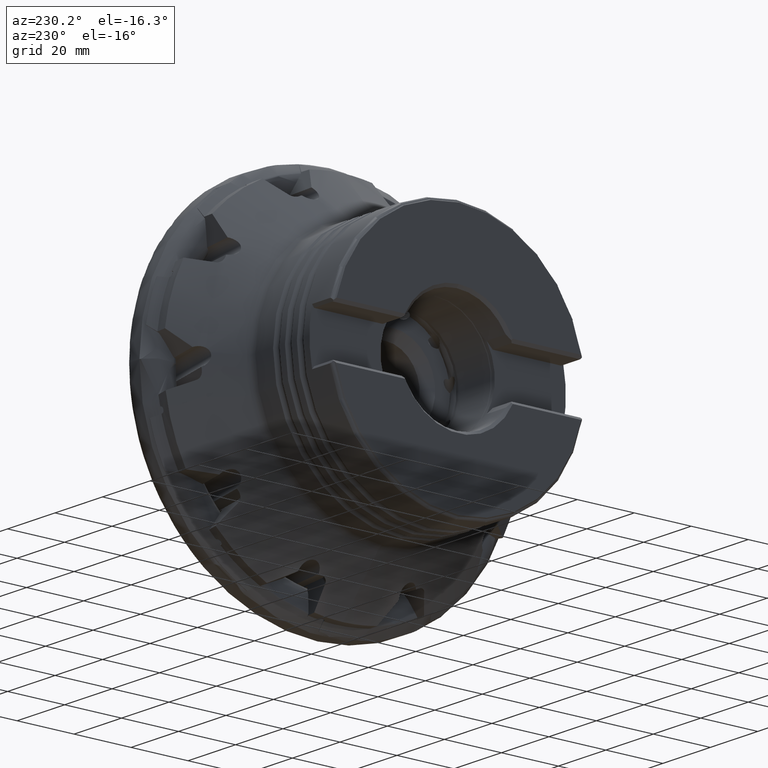
[diagram: clean part render]
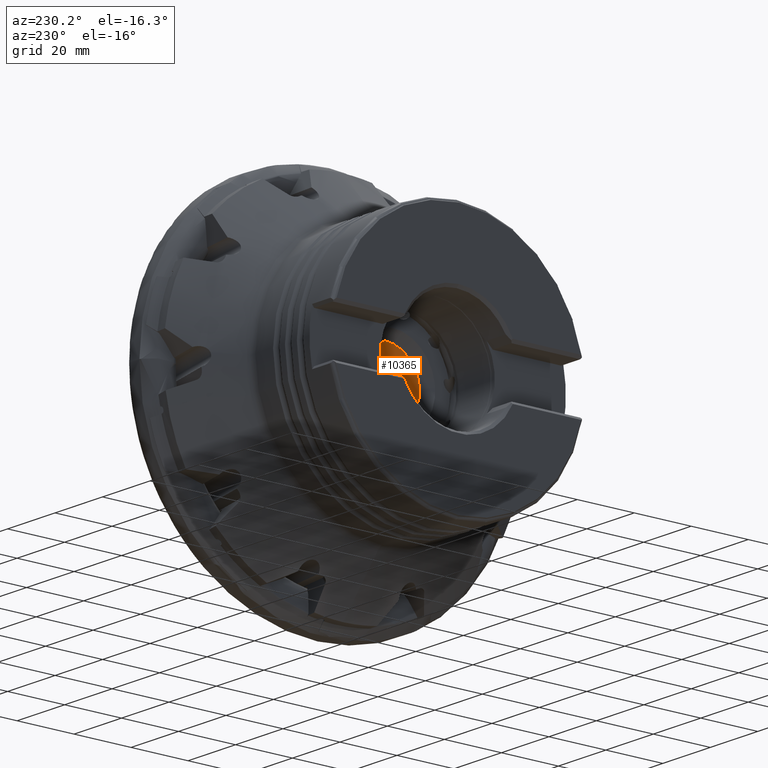
[diagram: same view with one face highlighted and labeled with its STEP entity id]
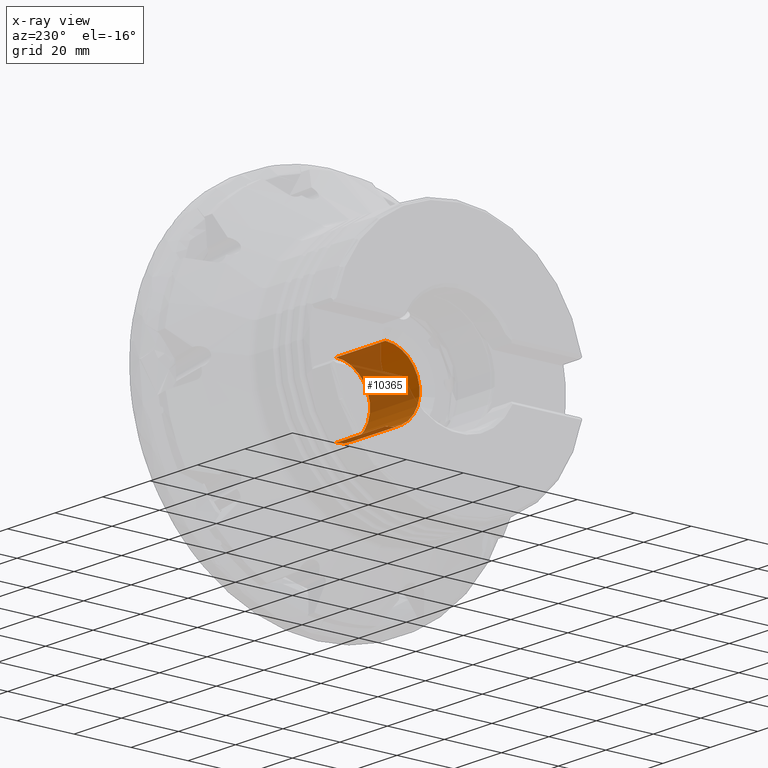
[diagram: x-ray of the same camera — body ghosted, the highlighted face saturated]
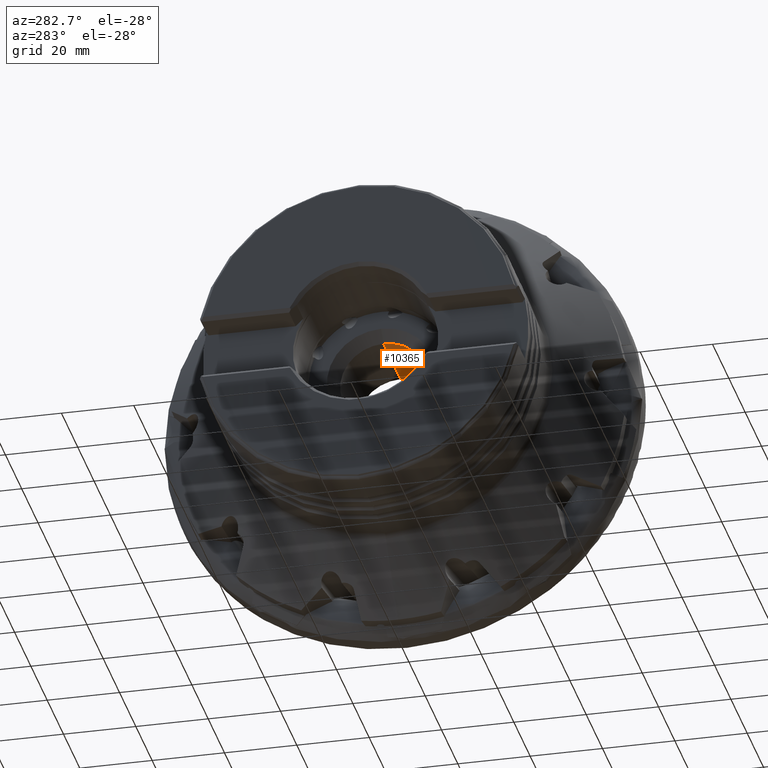
[diagram: same view with one face highlighted and labeled with its STEP entity id]
A machine part, auxiliary view. The second image highlights one B-rep face of the part: STEP entity #10365.
The next image is the same camera in x-ray: the body ghosted, the highlighted face saturated — about 76% of this face is hidden behind the body in this view.
A second angle (auxiliary view) of the same face is appended — the face is thin or edge-on in the first view.
In plain terms, the highlighted cylindrical surface (partial cylindrical patch) has radius 12 mm, axis along (1, -0, -0).
Its self-contained STEP definition (entity closure, byte-faithful):
#404 = DIRECTION ( 'NONE',  ( 0.0000000000000000000, 0.0000000000000000000, -1.000000000000000000 ) ) ;
#1865 = DIRECTION ( 'NONE',  ( 1.000000000000000000, -0.0000000000000000000, -0.0000000000000000000 ) ) ;
#2178 = VERTEX_POINT ( 'NONE', #4831 ) ;
#2435 = EDGE_LOOP ( 'NONE', ( #3517, #14770, #9614, #17727 ) ) ;
#2534 = CARTESIAN_POINT ( 'NONE',  ( -8.673617379884035500E-016, 1.469576158976823800E-015, 11.99999999999999800 ) ) ;
#3517 = ORIENTED_EDGE ( 'NONE', *, *, #7516, .F. ) ;
#4831 = CARTESIAN_POINT ( 'NONE',  ( -31.15000000000000200, 0.0000000000000000000, 11.99999999999999600 ) ) ;
#5047 = VERTEX_POINT ( 'NONE', #12692 ) ;
#6173 = CARTESIAN_POINT ( 'NONE',  ( -10.28424251032452100, 0.0000000000000000000, -12.00000000000000000 ) ) ;
#6697 = EDGE_CURVE ( 'Kante60', #5047, #19399, #11407, .T. ) ;
#6910 = CARTESIAN_POINT ( 'NONE',  ( -10.28424251032452100, 0.0000000000000000000, 0.0000000000000000000 ) ) ;
#7516 = EDGE_CURVE ( 'NONE', #2178, #9811, #19822, .T. ) ;
#8591 = DIRECTION ( 'NONE',  ( 0.0000000000000000000, 0.0000000000000000000, -1.000000000000000000 ) ) ;
#8794 = EDGE_CURVE ( 'NONE', #2178, #5047, #16804, .T. ) ;
#9614 = ORIENTED_EDGE ( 'NONE', *, *, #6697, .T. ) ;
#9811 = VERTEX_POINT ( 'NONE', #13024 ) ;
#10081 = CARTESIAN_POINT ( 'NONE',  ( -8.673617379884035500E-016, 0.0000000000000000000, -11.99999999999999800 ) ) ;
#10301 = AXIS2_PLACEMENT_3D ( 'NONE', #20361, #1865, #11968 ) ;
#10365 = ADVANCED_FACE ( 'NONE', ( #11793 ), #20227, .F. ) ;
#10412 = DIRECTION ( 'NONE',  ( 1.000000000000000000, -0.0000000000000000000, -0.0000000000000000000 ) ) ;
#11245 = AXIS2_PLACEMENT_3D ( 'NONE', #6910, #18670, #8591 ) ;
#11407 = CIRCLE ( 'NONE', #11245, 12.00000000000000000 ) ;
#11793 = FACE_OUTER_BOUND ( 'NONE', #2435, .T. ) ;
#11968 = DIRECTION ( 'NONE',  ( 0.0000000000000000000, 0.0000000000000000000, -1.000000000000000000 ) ) ;
#12574 = DIRECTION ( 'NONE',  ( 1.000000000000000000, -0.0000000000000000000, -0.0000000000000000000 ) ) ;
#12692 = CARTESIAN_POINT ( 'NONE',  ( -10.28424251032452100, 1.469576158976824100E-015, 12.00000000000000200 ) ) ;
#13024 = CARTESIAN_POINT ( 'NONE',  ( -31.15000000000000200, 1.653273178848927100E-015, -11.99999999999999600 ) ) ;
#14770 = ORIENTED_EDGE ( 'NONE', *, *, #8794, .T. ) ;
#15339 = VECTOR ( 'NONE', #16800, 1000.000000000000000 ) ;
#16731 = AXIS2_PLACEMENT_3D ( 'NONE', #20489, #10412, #404 ) ;
#16800 = DIRECTION ( 'NONE',  ( 1.000000000000000000, -0.0000000000000000000, -0.0000000000000000000 ) ) ;
#16804 = LINE ( 'NONE', #2534, #21324 ) ;
#17727 = ORIENTED_EDGE ( 'NONE', *, *, #21277, .F. ) ;
#18670 = DIRECTION ( 'NONE',  ( 1.000000000000000000, -0.0000000000000000000, -0.0000000000000000000 ) ) ;
#19399 = VERTEX_POINT ( 'NONE', #6173 ) ;
#19822 = CIRCLE ( 'NONE', #16731, 11.99999999999999600 ) ;
#19823 = LINE ( 'NONE', #10081, #15339 ) ;
#20227 = CYLINDRICAL_SURFACE ( 'NONE', #10301, 11.99999999999999800 ) ;
#20361 = CARTESIAN_POINT ( 'NONE',  ( -8.673617379884035500E-016, 0.0000000000000000000, 0.0000000000000000000 ) ) ;
#20489 = CARTESIAN_POINT ( 'NONE',  ( -31.15000000000000200, 0.0000000000000000000, 0.0000000000000000000 ) ) ;
#21277 = EDGE_CURVE ( 'NONE', #9811, #19399, #19823, .T. ) ;
#21324 = VECTOR ( 'NONE', #12574, 1000.000000000000000 ) ;